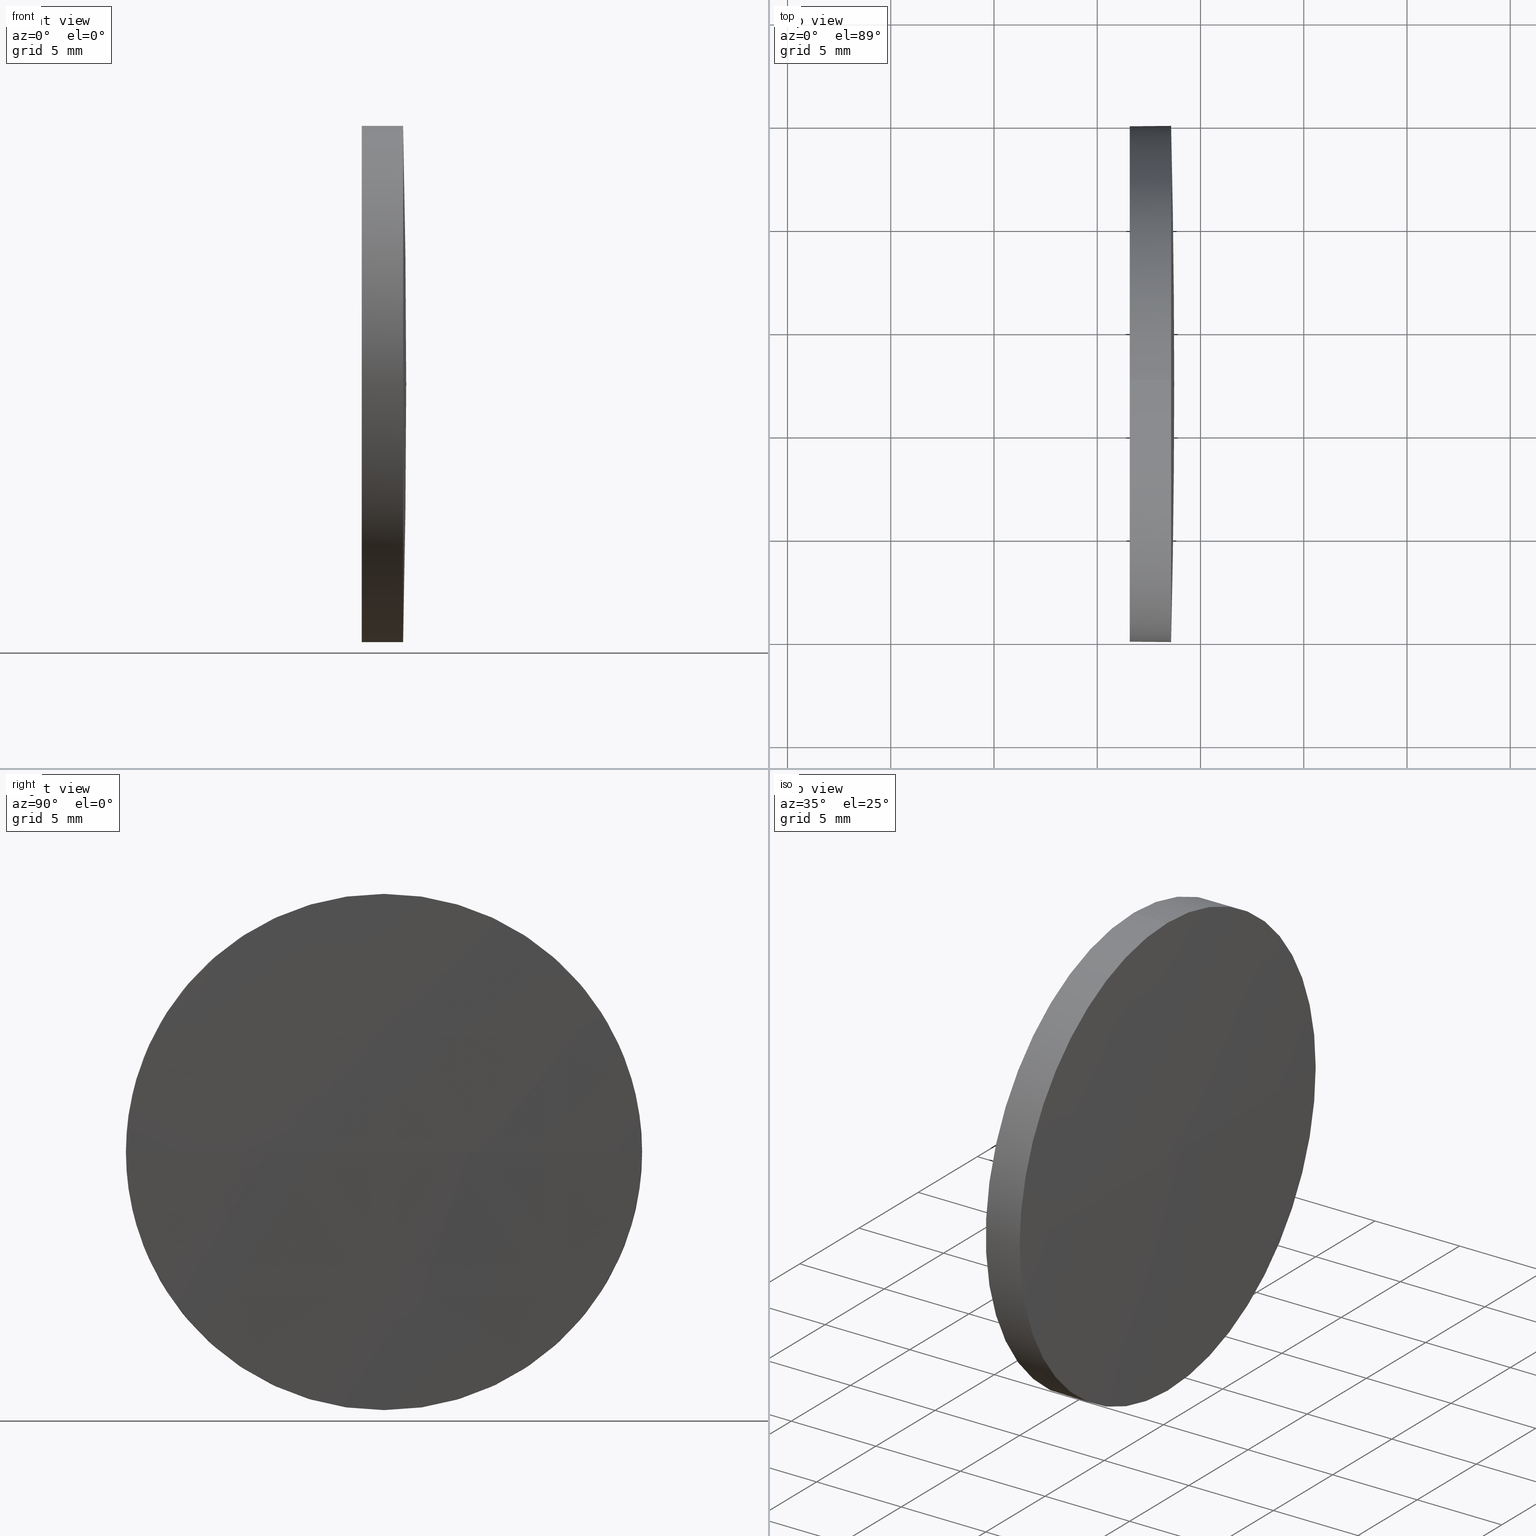
[diagram: canonical four-view strip — front | top / right | iso, engineering-drawing reading convention]
A machine part, canonical four-view strip (front | top / right | iso — engineering-drawing reading convention). The complete STEP part file that produces these views, byte-faithful:
ISO-10303-21;
HEADER;
FILE_DESCRIPTION (( 'STEP AP214' ),
    '1' );
FILE_NAME ('100054.STEP',
    '2019-04-30T01:38:09',
    ( '' ),
    ( '' ),
    'SwSTEP 2.0',
    'SolidWorks 2016',
    '' );
FILE_SCHEMA (( 'AUTOMOTIVE_DESIGN' ));
ENDSEC;

DATA;
#1 = FILL_AREA_STYLE ('',( #172 ) ) ;
#2 = PRESENTATION_STYLE_ASSIGNMENT (( #8 ) ) ;
#3 =( LENGTH_UNIT ( ) NAMED_UNIT ( * ) SI_UNIT ( .MILLI., .METRE. ) );
#4 = EDGE_CURVE ( 'NONE', #70, #81, #40, .T. ) ;
#5 = CARTESIAN_POINT ( 'NONE',  ( 421.8356969789069200, 122.3870715266886200, 12.49999999999999600 ) ) ;
#6 = APPLICATION_PROTOCOL_DEFINITION ( 'draft international standard', 'automotive_design', 1998, #66 ) ;
#7 = SPHERICAL_SURFACE ( 'NONE', #41, 520.9083333333633200 ) ;
#8 = SURFACE_STYLE_USAGE ( .BOTH. , #128 ) ;
#9 = FILL_AREA_STYLE ('',( #36 ) ) ;
#10 =( NAMED_UNIT ( * ) PLANE_ANGLE_UNIT ( ) SI_UNIT ( $, .RADIAN. ) );
#11 = ORIENTED_EDGE ( 'NONE', *, *, #129, .F. ) ;
#12 = EDGE_CURVE ( 'NONE', #182, #137, #157, .T. ) ;
#13 = EDGE_CURVE ( 'NONE', #83, #182, #105, .T. ) ;
#14 = ORIENTED_EDGE ( 'NONE', *, *, #27, .T. ) ;
#15 = DIRECTION ( 'NONE',  ( -1.000000000000000000, -0.0000000000000000000, -0.0000000000000000000 ) ) ;
#16 = DIRECTION ( 'NONE',  ( 1.000000000000000000, 0.0000000000000000000, 0.0000000000000000000 ) ) ;
#17 = DIRECTION ( 'NONE',  ( 1.000000000000000000, 0.0000000000000000000, 0.0000000000000000000 ) ) ;
#18 = DIRECTION ( 'NONE',  ( -0.0000000000000000000, 0.0000000000000000000, -1.000000000000000000 ) ) ;
#19 = CARTESIAN_POINT ( 'NONE',  ( 426.5777282207968100, 122.3870715266886200, 0.0000000000000000000 ) ) ;
#20 = SURFACE_SIDE_STYLE ('',( #63 ) ) ;
#21 = DIRECTION ( 'NONE',  ( 0.0000000000000000000, 0.0000000000000000000, 1.000000000000000000 ) ) ;
#22 = EDGE_LOOP ( 'NONE', ( #56, #167, #84, #142, #124 ) ) ;
#23 = CYLINDRICAL_SURFACE ( 'NONE', #97, 12.49999999999999600 ) ;
#24 = AXIS2_PLACEMENT_3D ( 'NONE', #145, #62, #144 ) ;
#25 = CYLINDRICAL_SURFACE ( 'NONE', #160, 12.49999999999999600 ) ;
#26 = CARTESIAN_POINT ( 'NONE',  ( 428.5777282207968100, 122.3870715266886200, 0.0000000000000000000 ) ) ;
#27 = EDGE_CURVE ( 'NONE', #39, #181, #168, .T. ) ;
#28 = DIRECTION ( 'NONE',  ( -1.000000000000000000, -0.0000000000000000000, -0.0000000000000000000 ) ) ;
#29 =( GEOMETRIC_REPRESENTATION_CONTEXT ( 3 ) GLOBAL_UNCERTAINTY_ASSIGNED_CONTEXT ( ( #61 ) ) GLOBAL_UNIT_ASSIGNED_CONTEXT ( ( #80, #10, #120 ) ) REPRESENTATION_CONTEXT ( 'NONE', 'WORKASPACE' ) );
#30 = FACE_OUTER_BOUND ( 'NONE', #127, .T. ) ;
#31 = DIRECTION ( 'NONE',  ( -0.0000000000000000000, 0.0000000000000000000, 1.000000000000000000 ) ) ;
#32 = AXIS2_PLACEMENT_3D ( 'NONE', #19, #148, #123 ) ;
#33 = PLANE ( 'NONE',  #99 ) ;
#34 = ORIENTED_EDGE ( 'NONE', *, *, #129, .T. ) ;
#35 = EDGE_LOOP ( 'NONE', ( #11, #14, #77, #92 ) ) ;
#36 = FILL_AREA_STYLE_COLOUR ( '', #186 ) ;
#37 = SPHERICAL_SURFACE ( 'NONE', #86, 520.9083333333633200 ) ;
#38 = PRODUCT_DEFINITION ( 'δ֪', '', #78, #122 ) ;
#39 = VERTEX_POINT ( 'NONE', #75 ) ;
#40 = CIRCLE ( 'NONE', #178, 12.49999999999999600 ) ;
#41 = AXIS2_PLACEMENT_3D ( 'NONE', #115, #121, #50 ) ;
#42 = EDGE_LOOP ( 'NONE', ( #169, #34, #94, #117 ) ) ;
#43 = CIRCLE ( 'NONE', #141, 12.49999999999999600 ) ;
#44 = SURFACE_STYLE_FILL_AREA ( #1 ) ;
#45 = EDGE_CURVE ( 'NONE', #81, #137, #85, .T. ) ;
#46 = CARTESIAN_POINT ( 'NONE',  ( 428.5777282207968100, 122.3870715266886200, 0.0000000000000000000 ) ) ;
#47 =( NAMED_UNIT ( * ) SI_UNIT ( $, .STERADIAN. ) SOLID_ANGLE_UNIT ( ) );
#48 =( NAMED_UNIT ( * ) PLANE_ANGLE_UNIT ( ) SI_UNIT ( $, .RADIAN. ) );
#49 = DIRECTION ( 'NONE',  ( 0.0000000000000000000, 0.0000000000000000000, -1.000000000000000000 ) ) ;
#50 = DIRECTION ( 'NONE',  ( 0.0000000000000000000, 1.000000000000000000, 0.0000000000000000000 ) ) ;
#51 = COLOUR_RGB ( '',1.000000000000000000, 1.000000000000000000, 1.000000000000000000 ) ;
#52 = MECHANICAL_DESIGN_GEOMETRIC_PRESENTATION_REPRESENTATION (  '', ( #116 ), #29 ) ;
#53 =( GEOMETRIC_REPRESENTATION_CONTEXT ( 3 ) GLOBAL_UNCERTAINTY_ASSIGNED_CONTEXT ( ( #152 ) ) GLOBAL_UNIT_ASSIGNED_CONTEXT ( ( #162, #165, #104 ) ) REPRESENTATION_CONTEXT ( 'NONE', 'WORKASPACE' ) );
#54 = MANIFOLD_SOLID_BREP ( '��ת1', #134 ) ;
#55 = SHAPE_DEFINITION_REPRESENTATION ( #114, #107 ) ;
#56 = ORIENTED_EDGE ( 'NONE', *, *, #45, .F. ) ;
#57 = EDGE_CURVE ( 'NONE', #83, #70, #73, .T. ) ;
#58 = CARTESIAN_POINT ( 'NONE',  ( 426.5777282207968100, 122.3870715266886200, -12.49999999999999600 ) ) ;
#59 = CARTESIAN_POINT ( 'NONE',  ( 428.5777282207968100, 122.3870715266886200, 0.0000000000000000000 ) ) ;
#60 = PRODUCT_RELATED_PRODUCT_CATEGORY ( 'part', '', ( #111 ) ) ;
#61 = UNCERTAINTY_MEASURE_WITH_UNIT (LENGTH_MEASURE( 1.000000000000000100E-005 ), #80, 'distance_accuracy_value', 'NONE');
#62 = DIRECTION ( 'NONE',  ( 0.0000000000000000000, 1.224646799147353200E-016, -1.000000000000000000 ) ) ;
#63 = SURFACE_STYLE_FILL_AREA ( #9 ) ;
#64 = CARTESIAN_POINT ( 'NONE',  ( 426.5777282207968100, 122.3870715266886200, 12.49999999999999600 ) ) ;
#65 = ADVANCED_FACE ( 'NONE', ( #109 ), #37, .T. ) ;
#66 = APPLICATION_CONTEXT ( 'automotive_design' ) ;
#67 = EDGE_CURVE ( 'NONE', #181, #83, #68, .T. ) ;
#68 = CIRCLE ( 'NONE', #93, 12.49999999999999600 ) ;
#69 = DIRECTION ( 'NONE',  ( -1.000000000000000000, -0.0000000000000000000, -0.0000000000000000000 ) ) ;
#70 = VERTEX_POINT ( 'NONE', #113 ) ;
#71 = EDGE_LOOP ( 'NONE', ( #125, #95, #161, #136, #140 ) ) ;
#72 = PRESENTATION_LAYER_ASSIGNMENT (  '', '', ( #116 ) ) ;
#73 = CIRCLE ( 'NONE', #158, 12.49999999999999600 ) ;
#74 = CARTESIAN_POINT ( 'NONE',  ( -92.18060511256635400, 122.3870715266859900, 0.0000000000000000000 ) ) ;
#75 = CARTESIAN_POINT ( 'NONE',  ( 428.7277282207969100, 122.3870715266860100, 0.0000000000000000000 ) ) ;
#76 = CARTESIAN_POINT ( 'NONE',  ( 428.5777282207968100, 122.3870715266886200, -12.49999999999999600 ) ) ;
#77 = ORIENTED_EDGE ( 'NONE', *, *, #147, .F. ) ;
#78 = PRODUCT_DEFINITION_FORMATION_WITH_SPECIFIED_SOURCE ( '�κ�', '', #111, .NOT_KNOWN. ) ;
#79 = DIRECTION ( 'NONE',  ( 0.0000000000000000000, 0.0000000000000000000, 1.000000000000000000 ) ) ;
#80 =( LENGTH_UNIT ( ) NAMED_UNIT ( * ) SI_UNIT ( .MILLI., .METRE. ) );
#81 = VERTEX_POINT ( 'NONE', #76 ) ;
#82 = MECHANICAL_DESIGN_GEOMETRIC_PRESENTATION_REPRESENTATION (  '', ( #138 ), #91 ) ;
#83 = VERTEX_POINT ( 'NONE', #174 ) ;
#84 = ORIENTED_EDGE ( 'NONE', *, *, #67, .T. ) ;
#85 = LINE ( 'NONE', #131, #185 ) ;
#86 = AXIS2_PLACEMENT_3D ( 'NONE', #90, #18, #146 ) ;
#87 = ORIENTED_EDGE ( 'NONE', *, *, #12, .T. ) ;
#88 = AXIS2_PLACEMENT_3D ( 'NONE', #176, #135, #153 ) ;
#89 = DIRECTION ( 'NONE',  ( 0.0000000000000000000, 0.0000000000000000000, 1.000000000000000000 ) ) ;
#90 = CARTESIAN_POINT ( 'NONE',  ( -92.18060511256635400, 122.3870715266859900, 0.0000000000000000000 ) ) ;
#91 =( GEOMETRIC_REPRESENTATION_CONTEXT ( 3 ) GLOBAL_UNCERTAINTY_ASSIGNED_CONTEXT ( ( #139 ) ) GLOBAL_UNIT_ASSIGNED_CONTEXT ( ( #3, #48, #47 ) ) REPRESENTATION_CONTEXT ( 'NONE', 'WORKASPACE' ) );
#92 = ORIENTED_EDGE ( 'NONE', *, *, #4, .F. ) ;
#93 = AXIS2_PLACEMENT_3D ( 'NONE', #46, #171, #118 ) ;
#94 = ORIENTED_EDGE ( 'NONE', *, *, #57, .F. ) ;
#95 = ORIENTED_EDGE ( 'NONE', *, *, #45, .T. ) ;
#96 = CIRCLE ( 'NONE', #110, 520.9083333333633200 ) ;
#97 = AXIS2_PLACEMENT_3D ( 'NONE', #164, #106, #79 ) ;
#98 = ADVANCED_FACE ( 'NONE', ( #30 ), #33, .F. ) ;
#99 = AXIS2_PLACEMENT_3D ( 'NONE', #143, #16, #49 ) ;
#100 = DIRECTION ( 'NONE',  ( -1.000000000000000000, -0.0000000000000000000, -0.0000000000000000000 ) ) ;
#101 = CARTESIAN_POINT ( 'NONE',  ( 426.5777282207968100, 122.3870715266886200, 0.0000000000000000000 ) ) ;
#102 = DIRECTION ( 'NONE',  ( 0.0000000000000000000, 0.0000000000000000000, 1.000000000000000000 ) ) ;
#103 = DIRECTION ( 'NONE',  ( -1.000000000000000000, -0.0000000000000000000, -0.0000000000000000000 ) ) ;
#104 =( NAMED_UNIT ( * ) SI_UNIT ( $, .STERADIAN. ) SOLID_ANGLE_UNIT ( ) );
#105 = LINE ( 'NONE', #5, #108 ) ;
#106 = DIRECTION ( 'NONE',  ( -1.000000000000000000, -0.0000000000000000000, -0.0000000000000000000 ) ) ;
#107 = ADVANCED_BREP_SHAPE_REPRESENTATION ( '100054', ( #54, #88 ), #53 ) ;
#108 = VECTOR ( 'NONE', #28, 1000.000000000000000 ) ;
#109 = FACE_OUTER_BOUND ( 'NONE', #35, .T. ) ;
#110 = AXIS2_PLACEMENT_3D ( 'NONE', #74, #31, #17 ) ;
#111 = PRODUCT ( '100054', '100054', '', ( #133 ) ) ;
#112 = CIRCLE ( 'NONE', #32, 12.49999999999999600 ) ;
#113 = CARTESIAN_POINT ( 'NONE',  ( 428.5777282207968700, 134.8870715266888900, 0.0000000000000000000 ) ) ;
#114 = PRODUCT_DEFINITION_SHAPE ( 'NONE', 'NONE',  #38 ) ;
#115 = CARTESIAN_POINT ( 'NONE',  ( -92.18060511256635400, 122.3870715266859900, 0.0000000000000000000 ) ) ;
#116 = STYLED_ITEM ( 'NONE', ( #149 ), #107 ) ;
#117 = ORIENTED_EDGE ( 'NONE', *, *, #67, .F. ) ;
#118 = DIRECTION ( 'NONE',  ( 0.0000000000000000000, 0.0000000000000000000, 1.000000000000000000 ) ) ;
#119 = CARTESIAN_POINT ( 'NONE',  ( 428.5777282207968700, 109.8870715266857000, -1.530808498934227000E-015 ) ) ;
#120 =( NAMED_UNIT ( * ) SI_UNIT ( $, .STERADIAN. ) SOLID_ANGLE_UNIT ( ) );
#121 = DIRECTION ( 'NONE',  ( -0.0000000000000000000, 0.0000000000000000000, -1.000000000000000000 ) ) ;
#122 = PRODUCT_DEFINITION_CONTEXT ( 'detailed design', #66, 'design' ) ;
#123 = DIRECTION ( 'NONE',  ( 0.0000000000000000000, 0.0000000000000000000, 1.000000000000000000 ) ) ;
#124 = ORIENTED_EDGE ( 'NONE', *, *, #184, .F. ) ;
#125 = ORIENTED_EDGE ( 'NONE', *, *, #4, .T. ) ;
#126 = ADVANCED_FACE ( 'NONE', ( #180 ), #25, .T. ) ;
#127 = EDGE_LOOP ( 'NONE', ( #87, #156 ) ) ;
#128 = SURFACE_SIDE_STYLE ('',( #44 ) ) ;
#129 = EDGE_CURVE ( 'NONE', #39, #70, #96, .T. ) ;
#130 = DIRECTION ( 'NONE',  ( 0.0000000000000000000, 0.0000000000000000000, 1.000000000000000000 ) ) ;
#131 = CARTESIAN_POINT ( 'NONE',  ( 421.8356969789069200, 122.3870715266886200, -12.49999999999999600 ) ) ;
#132 = CARTESIAN_POINT ( 'NONE',  ( 428.5777282207968100, 122.3870715266886200, 0.0000000000000000000 ) ) ;
#133 = PRODUCT_CONTEXT ( 'NONE', #179, 'mechanical' ) ;
#134 = CLOSED_SHELL ( 'NONE', ( #126, #65, #155, #183, #98 ) ) ;
#135 = DIRECTION ( 'NONE',  ( 0.0000000000000000000, 0.0000000000000000000, 1.000000000000000000 ) ) ;
#136 = ORIENTED_EDGE ( 'NONE', *, *, #13, .F. ) ;
#137 = VERTEX_POINT ( 'NONE', #58 ) ;
#138 = STYLED_ITEM ( 'NONE', ( #2 ), #54 ) ;
#139 = UNCERTAINTY_MEASURE_WITH_UNIT (LENGTH_MEASURE( 1.000000000000000100E-005 ), #3, 'distance_accuracy_value', 'NONE');
#140 = ORIENTED_EDGE ( 'NONE', *, *, #57, .T. ) ;
#141 = AXIS2_PLACEMENT_3D ( 'NONE', #132, #150, #21 ) ;
#142 = ORIENTED_EDGE ( 'NONE', *, *, #13, .T. ) ;
#143 = CARTESIAN_POINT ( 'NONE',  ( 426.5777282207968100, 122.3870715266886200, 0.0000000000000000000 ) ) ;
#144 = DIRECTION ( 'NONE',  ( 0.0000000000000000000, 1.000000000000000000, 1.224646799147353000E-016 ) ) ;
#145 = CARTESIAN_POINT ( 'NONE',  ( -92.18060511256635400, 122.3870715266859900, 0.0000000000000000000 ) ) ;
#146 = DIRECTION ( 'NONE',  ( 0.0000000000000000000, 1.000000000000000000, 0.0000000000000000000 ) ) ;
#147 = EDGE_CURVE ( 'NONE', #81, #181, #43, .T. ) ;
#148 = DIRECTION ( 'NONE',  ( -1.000000000000000000, -0.0000000000000000000, -0.0000000000000000000 ) ) ;
#149 = PRESENTATION_STYLE_ASSIGNMENT (( #166 ) ) ;
#150 = DIRECTION ( 'NONE',  ( -1.000000000000000000, -0.0000000000000000000, -0.0000000000000000000 ) ) ;
#151 = AXIS2_PLACEMENT_3D ( 'NONE', #101, #175, #102 ) ;
#152 = UNCERTAINTY_MEASURE_WITH_UNIT (LENGTH_MEASURE( 1.000000000000000100E-005 ), #162, 'distance_accuracy_value', 'NONE');
#153 = DIRECTION ( 'NONE',  ( 1.000000000000000000, 0.0000000000000000000, 0.0000000000000000000 ) ) ;
#154 = FACE_OUTER_BOUND ( 'NONE', #22, .T. ) ;
#155 = ADVANCED_FACE ( 'NONE', ( #173 ), #7, .T. ) ;
#156 = ORIENTED_EDGE ( 'NONE', *, *, #184, .T. ) ;
#157 = CIRCLE ( 'NONE', #151, 12.49999999999999600 ) ;
#158 = AXIS2_PLACEMENT_3D ( 'NONE', #59, #103, #130 ) ;
#159 = CARTESIAN_POINT ( 'NONE',  ( 421.8356969789069200, 122.3870715266886200, 0.0000000000000000000 ) ) ;
#160 = AXIS2_PLACEMENT_3D ( 'NONE', #159, #100, #163 ) ;
#161 = ORIENTED_EDGE ( 'NONE', *, *, #12, .F. ) ;
#162 =( LENGTH_UNIT ( ) NAMED_UNIT ( * ) SI_UNIT ( .MILLI., .METRE. ) );
#163 = DIRECTION ( 'NONE',  ( 0.0000000000000000000, 0.0000000000000000000, 1.000000000000000000 ) ) ;
#164 = CARTESIAN_POINT ( 'NONE',  ( 421.8356969789069200, 122.3870715266886200, 0.0000000000000000000 ) ) ;
#165 =( NAMED_UNIT ( * ) PLANE_ANGLE_UNIT ( ) SI_UNIT ( $, .RADIAN. ) );
#166 = SURFACE_STYLE_USAGE ( .BOTH. , #20 ) ;
#167 = ORIENTED_EDGE ( 'NONE', *, *, #147, .T. ) ;
#168 = CIRCLE ( 'NONE', #24, 520.9083333333633200 ) ;
#169 = ORIENTED_EDGE ( 'NONE', *, *, #27, .F. ) ;
#170 = PRESENTATION_LAYER_ASSIGNMENT (  '', '', ( #138 ) ) ;
#171 = DIRECTION ( 'NONE',  ( -1.000000000000000000, -0.0000000000000000000, -0.0000000000000000000 ) ) ;
#172 = FILL_AREA_STYLE_COLOUR ( '', #51 ) ;
#173 = FACE_OUTER_BOUND ( 'NONE', #42, .T. ) ;
#174 = CARTESIAN_POINT ( 'NONE',  ( 428.5777282207968100, 122.3870715266886200, 12.49999999999999600 ) ) ;
#175 = DIRECTION ( 'NONE',  ( -1.000000000000000000, -0.0000000000000000000, -0.0000000000000000000 ) ) ;
#176 = CARTESIAN_POINT ( 'NONE',  ( 0.0000000000000000000, 0.0000000000000000000, 0.0000000000000000000 ) ) ;
#177 = APPLICATION_PROTOCOL_DEFINITION ( 'draft international standard', 'automotive_design', 1998, #179 ) ;
#178 = AXIS2_PLACEMENT_3D ( 'NONE', #26, #69, #89 ) ;
#179 = APPLICATION_CONTEXT ( 'automotive_design' ) ;
#180 = FACE_OUTER_BOUND ( 'NONE', #71, .T. ) ;
#181 = VERTEX_POINT ( 'NONE', #119 ) ;
#182 = VERTEX_POINT ( 'NONE', #64 ) ;
#183 = ADVANCED_FACE ( 'NONE', ( #154 ), #23, .T. ) ;
#184 = EDGE_CURVE ( 'NONE', #137, #182, #112, .T. ) ;
#185 = VECTOR ( 'NONE', #15, 1000.000000000000000 ) ;
#186 = COLOUR_RGB ( '',1.000000000000000000, 1.000000000000000000, 1.000000000000000000 ) ;
ENDSEC;
END-ISO-10303-21;
